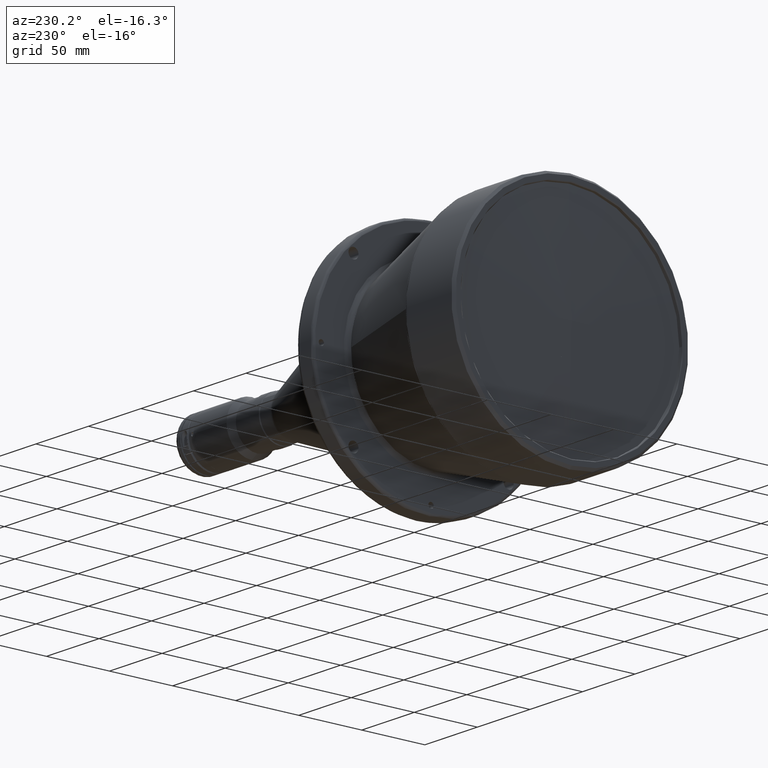
[diagram: clean part render]
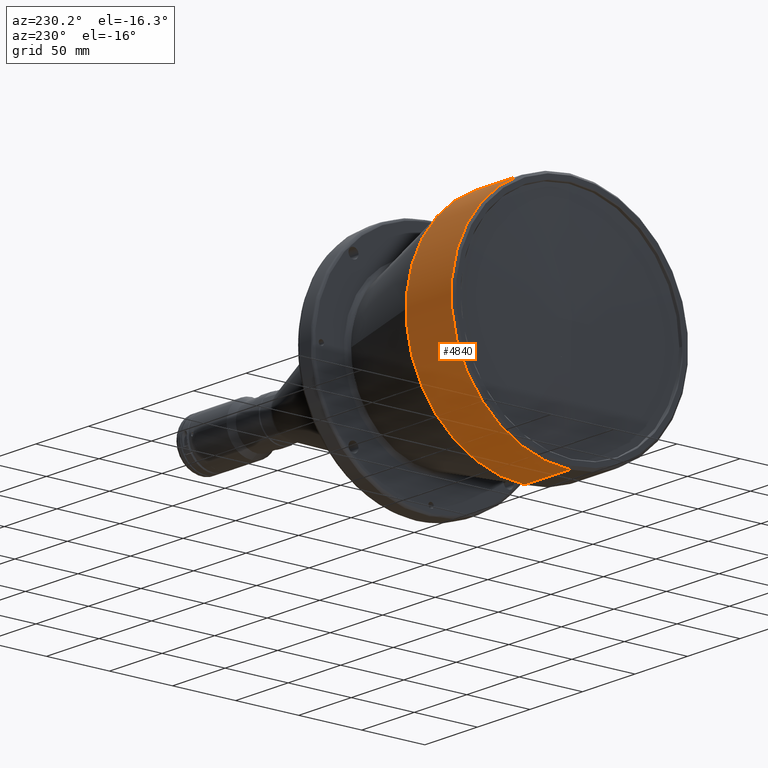
[diagram: same view with one face highlighted and labeled with its STEP entity id]
A machine part, auxiliary view. The second image highlights one B-rep face of the part: STEP entity #4840.
In plain terms, the highlighted cylindrical surface (partial cylindrical patch) has radius 94 mm, axis along (-1, 0, 0).
Its self-contained STEP definition (entity closure, byte-faithful):
#98 = CIRCLE ( 'NONE', #639, 93.99999999968520100 ) ;
#122 = EDGE_CURVE ( 'NONE', #3617, #994, #2470, .T. ) ;
#639 = AXIS2_PLACEMENT_3D ( 'NONE', #1444, #1481, #1965 ) ;
#665 = CARTESIAN_POINT ( 'NONE',  ( 44.99999999985392000, -8.440601072300905400E-009, 93.99999999992130000 ) ) ;
#991 = AXIS2_PLACEMENT_3D ( 'NONE', #3749, #6140, #4228 ) ;
#994 = VERTEX_POINT ( 'NONE', #1920 ) ;
#1444 = CARTESIAN_POINT ( 'NONE',  ( 44.99999999941566400, 0.0000000000000000000, 0.0000000000000000000 ) ) ;
#1457 = CARTESIAN_POINT ( 'NONE',  ( 45.00000000000000000, 0.0000000000000000000, 94.00000000000000000 ) ) ;
#1481 = DIRECTION ( 'NONE',  ( 1.000000000000000000, -0.0000000000000000000, -0.0000000000000000000 ) ) ;
#1598 = EDGE_CURVE ( 'NONE', #3617, #5057, #98, .T. ) ;
#1601 = CARTESIAN_POINT ( 'NONE',  ( 44.99999999978087600, -2.409965285055141200E-008, -93.99999999988195000 ) ) ;
#1628 = DIRECTION ( 'NONE',  ( 0.0000000000000000000, 0.0000000000000000000, 1.000000000000000000 ) ) ;
#1649 = CARTESIAN_POINT ( 'NONE',  ( 45.00000000000000000, 1.151167991198512100E-014, -94.00000000000000000 ) ) ;
#1787 = AXIS2_PLACEMENT_3D ( 'NONE', #3140, #3635, #1628 ) ;
#1849 = CIRCLE ( 'NONE', #991, 94.00000000000000000 ) ;
#1920 = CARTESIAN_POINT ( 'NONE',  ( 2.000000000000000000, 1.151167991198512100E-014, -94.00000000000000000 ) ) ;
#1965 = DIRECTION ( 'NONE',  ( 0.0000000000000000000, 0.0000000000000000000, -1.000000000000000000 ) ) ;
#2005 = EDGE_CURVE ( 'NONE', #5057, #2580, #3375, .T. ) ;
#2025 = ORIENTED_EDGE ( 'NONE', *, *, #2005, .F. ) ;
#2032 = EDGE_LOOP ( 'NONE', ( #5996, #2778, #2561, #2025 ) ) ;
#2470 = LINE ( 'NONE', #1649, #5055 ) ;
#2561 = ORIENTED_EDGE ( 'NONE', *, *, #3710, .F. ) ;
#2580 = VERTEX_POINT ( 'NONE', #4825 ) ;
#2778 = ORIENTED_EDGE ( 'NONE', *, *, #122, .T. ) ;
#3103 = FACE_OUTER_BOUND ( 'NONE', #2032, .T. ) ;
#3140 = CARTESIAN_POINT ( 'NONE',  ( 45.00000000000000000, 0.0000000000000000000, 0.0000000000000000000 ) ) ;
#3375 = LINE ( 'NONE', #1457, #3446 ) ;
#3418 = DIRECTION ( 'NONE',  ( -1.000000000000000000, 0.0000000000000000000, 0.0000000000000000000 ) ) ;
#3446 = VECTOR ( 'NONE', #3418, 1000.000000000000000 ) ;
#3617 = VERTEX_POINT ( 'NONE', #1601 ) ;
#3635 = DIRECTION ( 'NONE',  ( -1.000000000000000000, 0.0000000000000000000, 0.0000000000000000000 ) ) ;
#3710 = EDGE_CURVE ( 'NONE', #2580, #994, #1849, .T. ) ;
#3749 = CARTESIAN_POINT ( 'NONE',  ( 2.000000000000000000, 0.0000000000000000000, 0.0000000000000000000 ) ) ;
#4228 = DIRECTION ( 'NONE',  ( 0.0000000000000000000, 0.0000000000000000000, 1.000000000000000000 ) ) ;
#4825 = CARTESIAN_POINT ( 'NONE',  ( 2.000000000000000000, 0.0000000000000000000, 94.00000000000000000 ) ) ;
#4840 = ADVANCED_FACE ( 'NONE', ( #3103 ), #5682, .T. ) ;
#5055 = VECTOR ( 'NONE', #5535, 1000.000000000000000 ) ;
#5057 = VERTEX_POINT ( 'NONE', #665 ) ;
#5535 = DIRECTION ( 'NONE',  ( -1.000000000000000000, 0.0000000000000000000, 0.0000000000000000000 ) ) ;
#5682 = CYLINDRICAL_SURFACE ( 'NONE', #1787, 94.00000000000000000 ) ;
#5996 = ORIENTED_EDGE ( 'NONE', *, *, #1598, .F. ) ;
#6140 = DIRECTION ( 'NONE',  ( -1.000000000000000000, 0.0000000000000000000, 0.0000000000000000000 ) ) ;